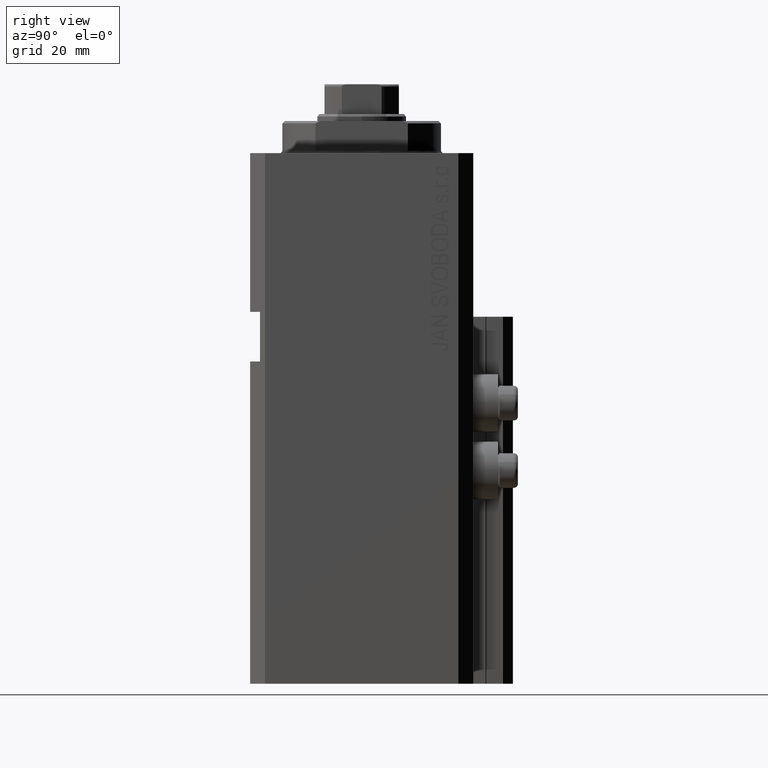
[diagram: clean part render]
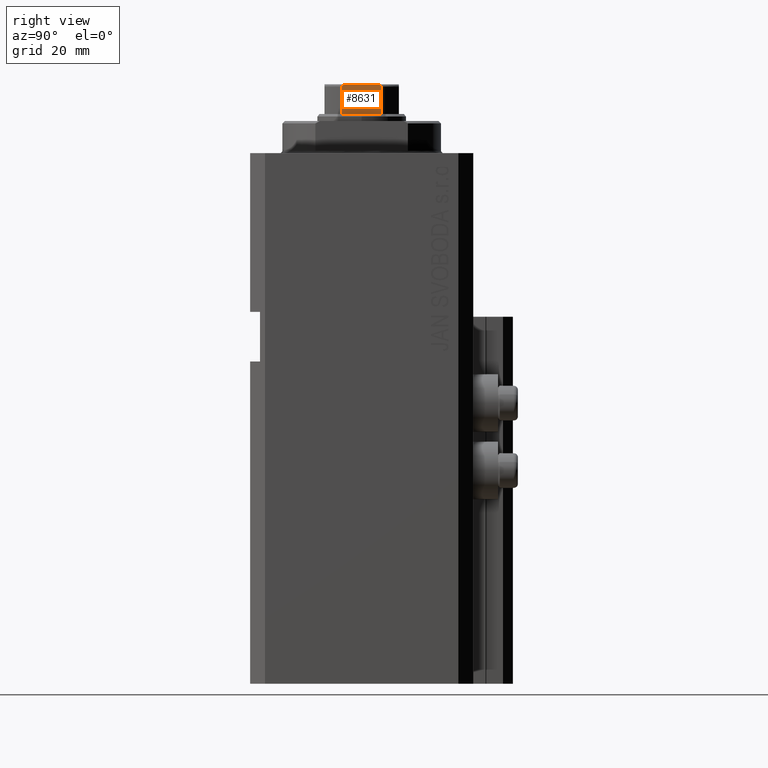
[diagram: same view with one face highlighted and labeled with its STEP entity id]
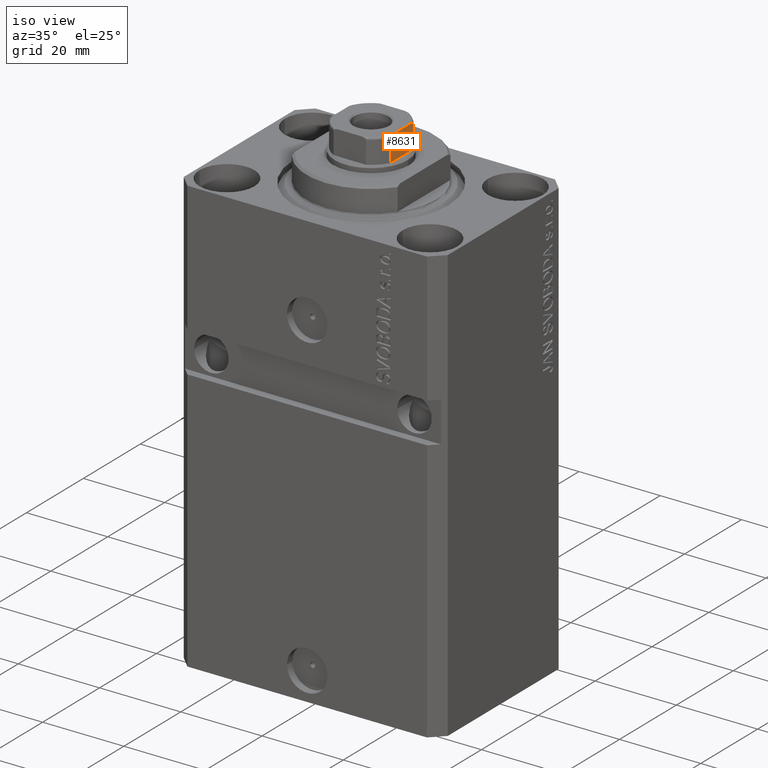
[diagram: same view with one face highlighted and labeled with its STEP entity id]
A machine part, right view. The second image highlights one B-rep face of the part: STEP entity #8631.
A second angle (iso view) of the same face is appended — the face is thin or edge-on in the first view.
In plain terms, the highlighted planar face has unit normal (-1, 0, 0).
Its self-contained STEP definition (entity closure, byte-faithful):
#192 = EDGE_CURVE ( 'NONE', #17489, #21645, #28246, .T. ) ;
#1664 = ORIENTED_EDGE ( 'NONE', *, *, #21155, .T. ) ;
#2232 = DIRECTION ( 'NONE',  ( -1.156482317317871478E-16, -1.000000000000000000, 0.000000000000000000 ) ) ;
#2577 = ORIENTED_EDGE ( 'NONE', *, *, #46735, .T. ) ;
#2871 = EDGE_LOOP ( 'NONE', ( #8775, #9049, #17424, #2577, #9557, #1664 ) ) ;
#3002 = VECTOR ( 'NONE', #42346, 1000.000000000000000 ) ;
#3196 = CARTESIAN_POINT ( 'NONE',  ( 7.500000000000000000, -4.000000000000207834, 113.5603418620520983 ) ) ;
#3434 = CARTESIAN_POINT ( 'NONE',  ( 7.500000000000002665, -3.857502111569842018, 113.7517335996921304 ) ) ;
#3586 = CARTESIAN_POINT ( 'NONE',  ( 7.500000000000001776, 3.999999999999998224, 113.5000000000000142 ) ) ;
#4710 = CARTESIAN_POINT ( 'NONE',  ( 7.500000000000000000, -4.000000000000002665, 113.5000000000000142 ) ) ;
#8631 = ADVANCED_FACE ( 'NONE', ( #12281 ), #38511, .F. ) ;
#8775 = ORIENTED_EDGE ( 'NONE', *, *, #192, .F. ) ;
#9049 = ORIENTED_EDGE ( 'NONE', *, *, #18265, .T. ) ;
#9071 = CARTESIAN_POINT ( 'NONE',  ( 7.500000000000000888, 3.976018255615929142, 113.6172619930099046 ) ) ;
#9162 = CARTESIAN_POINT ( 'NONE',  ( 7.500000000000001776, 7.500000000000000000, 114.0000000000000142 ) ) ;
#9320 = EDGE_CURVE ( 'NONE', #12038, #44317, #46840, .T. ) ;
#9557 = ORIENTED_EDGE ( 'NONE', *, *, #9320, .T. ) ;
#9911 = VECTOR ( 'NONE', #28008, 1000.000000000000000 ) ;
#10591 = CARTESIAN_POINT ( 'NONE',  ( 7.500000000000000000, -3.710689790367151630, 113.8481211817342853 ) ) ;
#11829 = B_SPLINE_CURVE_WITH_KNOTS ( 'NONE', 3,
 ( #23384, #37952, #9071, #29824, #15751, #15273, #19572, #26715, #15994, #37715 ),
 .UNSPECIFIED., .F., .F.,
 ( 4, 2, 2, 2, 4 ),
 ( 0.000000000000000000, 0.0001779688448868775293, 0.0003559376897737542996, 0.0007118753795475305001, 0.001423750759095082901 ),
 .UNSPECIFIED. ) ;
#12038 = VERTEX_POINT ( 'NONE', #25914 ) ;
#12281 = FACE_OUTER_BOUND ( 'NONE', #2871, .T. ) ;
#12819 = CARTESIAN_POINT ( 'NONE',  ( 7.500000000000000000, -4.000000000000002665, 108.0000000000000000 ) ) ;
#14923 = CARTESIAN_POINT ( 'NONE',  ( 7.500000000000000888, 2.783882181415007206, 114.0000000000000142 ) ) ;
#15273 = CARTESIAN_POINT ( 'NONE',  ( 7.500000000000000888, 3.708875323752952369, 113.8493035205546562 ) ) ;
#15563 = CARTESIAN_POINT ( 'NONE',  ( 7.500000000000000000, -4.000000000000002665, -0.001000000000001000089 ) ) ;
#15751 = CARTESIAN_POINT ( 'NONE',  ( 7.500000000000000888, 3.858352854028593182, 113.7511795160315700 ) ) ;
#15994 = CARTESIAN_POINT ( 'NONE',  ( 7.500000000000001776, 3.020011215871893029, 114.0000000000000000 ) ) ;
#17424 = ORIENTED_EDGE ( 'NONE', *, *, #36191, .F. ) ;
#17489 = VERTEX_POINT ( 'NONE', #18866 ) ;
#18265 = EDGE_CURVE ( 'NONE', #17489, #41214, #38828, .T. ) ;
#18866 = CARTESIAN_POINT ( 'NONE',  ( 7.500000000000000888, -2.783882181415009427, 114.0000000000000142 ) ) ;
#19572 = CARTESIAN_POINT ( 'NONE',  ( 7.500000000000000888, 3.597188386589924569, 113.8905284339324027 ) ) ;
#21155 = EDGE_CURVE ( 'NONE', #44317, #21645, #11829, .T. ) ;
#21326 = CARTESIAN_POINT ( 'NONE',  ( 7.500000000000001776, 3.999999999999998224, -0.001000000000001000089 ) ) ;
#21645 = VERTEX_POINT ( 'NONE', #14923 ) ;
#21807 = CARTESIAN_POINT ( 'NONE',  ( 7.500000000000001776, -3.904072061442343866, 113.7128705689081016 ) ) ;
#21810 = CARTESIAN_POINT ( 'NONE',  ( 7.500000000000001776, 7.500000000000000000, 114.0000000000000142 ) ) ;
#22092 = VECTOR ( 'NONE', #38592, 1000.000000000000000 ) ;
#23384 = CARTESIAN_POINT ( 'NONE',  ( 7.500000000000001776, 3.999999999999998224, 113.5000000000000142 ) ) ;
#25090 = AXIS2_PLACEMENT_3D ( 'NONE', #9162, #38278, #2232 ) ;
#25130 = CARTESIAN_POINT ( 'NONE',  ( 7.500000000000000000, -4.000000000000002665, 113.5000000000000142 ) ) ;
#25914 = CARTESIAN_POINT ( 'NONE',  ( 7.500000000000001776, 3.999999999999998224, 108.0000000000000000 ) ) ;
#26715 = CARTESIAN_POINT ( 'NONE',  ( 7.500000000000001776, 3.254991323038174844, 113.9826902844315981 ) ) ;
#28008 = DIRECTION ( 'NONE',  ( 1.156482317317871478E-16, 1.000000000000000000, -0.000000000000000000 ) ) ;
#28246 = LINE ( 'NONE', #21810, #9911 ) ;
#29190 = CARTESIAN_POINT ( 'NONE',  ( 7.500000000000000888, -2.783882181415009427, 114.0000000000000142 ) ) ;
#29824 = CARTESIAN_POINT ( 'NONE',  ( 7.500000000000001776, 3.904208668232356683, 113.7127813453749781 ) ) ;
#29872 = LINE ( 'NONE', #15563, #42422 ) ;
#35502 = VERTEX_POINT ( 'NONE', #12819 ) ;
#35885 = CARTESIAN_POINT ( 'NONE',  ( 7.499999999999999112, -3.598393151503776366, 113.8901219192741081 ) ) ;
#36191 = EDGE_CURVE ( 'NONE', #35502, #41214, #29872, .T. ) ;
#36597 = CARTESIAN_POINT ( 'NONE',  ( 7.500000000000004441, -3.255843148148204413, 113.9826237872687500 ) ) ;
#37715 = CARTESIAN_POINT ( 'NONE',  ( 7.500000000000000888, 2.783882181415007206, 114.0000000000000142 ) ) ;
#37952 = CARTESIAN_POINT ( 'NONE',  ( 7.500000000000000888, 3.999999999999998224, 113.5602639680043637 ) ) ;
#38278 = DIRECTION ( 'NONE',  ( -1.000000000000000000, 1.156482317317871478E-16, 0.000000000000000000 ) ) ;
#38511 = PLANE ( 'NONE',  #25090 ) ;
#38592 = DIRECTION ( 'NONE',  ( 1.156482317317871478E-16, 1.000000000000000000, -0.000000000000000000 ) ) ;
#38828 = B_SPLINE_CURVE_WITH_KNOTS ( 'NONE', 3,
 ( #29190, #43753, #36597, #35885, #10591, #3434, #21807, #47073, #3196, #25130 ),
 .UNSPECIFIED., .F., .F.,
 ( 4, 2, 2, 2, 4 ),
 ( 4.336808689942017736E-19, 0.0007049202178653984040, 0.001057380326798102593, 0.001233610381264454254, 0.001409840435730806999 ),
 .UNSPECIFIED. ) ;
#41214 = VERTEX_POINT ( 'NONE', #4710 ) ;
#41461 = LINE ( 'NONE', #45739, #22092 ) ;
#42346 = DIRECTION ( 'NONE',  ( -0.000000000000000000, -0.000000000000000000, 1.000000000000000000 ) ) ;
#42422 = VECTOR ( 'NONE', #44433, 1000.000000000000000 ) ;
#43753 = CARTESIAN_POINT ( 'NONE',  ( 7.500000000000001776, -3.020030562295400234, 114.0000000000000426 ) ) ;
#44317 = VERTEX_POINT ( 'NONE', #3586 ) ;
#44433 = DIRECTION ( 'NONE',  ( -0.000000000000000000, -0.000000000000000000, 1.000000000000000000 ) ) ;
#45739 = CARTESIAN_POINT ( 'NONE',  ( 7.500000000000001776, 7.500000000000000000, 108.0000000000000142 ) ) ;
#46735 = EDGE_CURVE ( 'NONE', #35502, #12038, #41461, .T. ) ;
#46840 = LINE ( 'NONE', #21326, #3002 ) ;
#47073 = CARTESIAN_POINT ( 'NONE',  ( 7.499999999999999112, -3.975735230428941946, 113.6177304131977763 ) ) ;